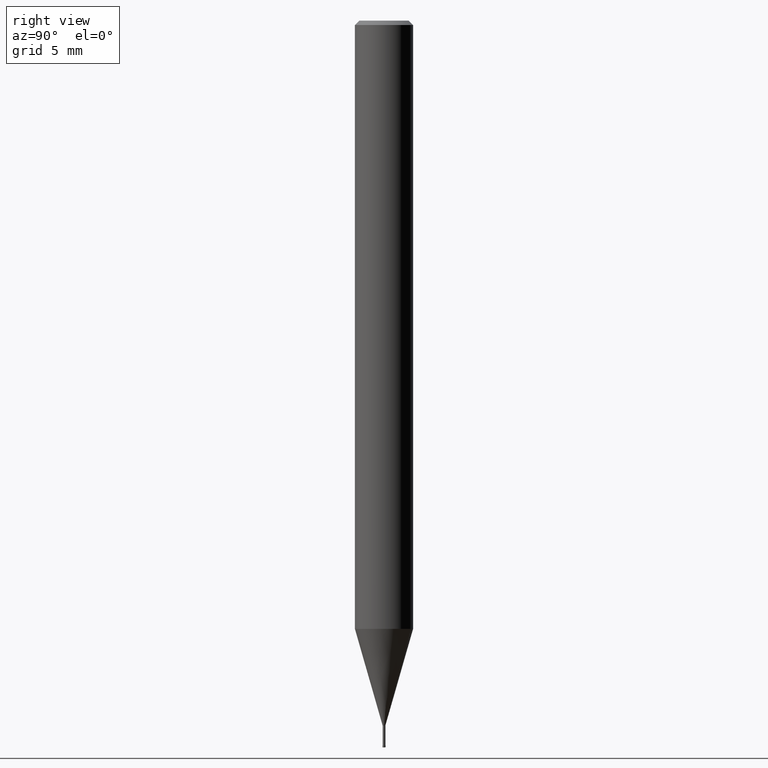
[diagram: clean part render]
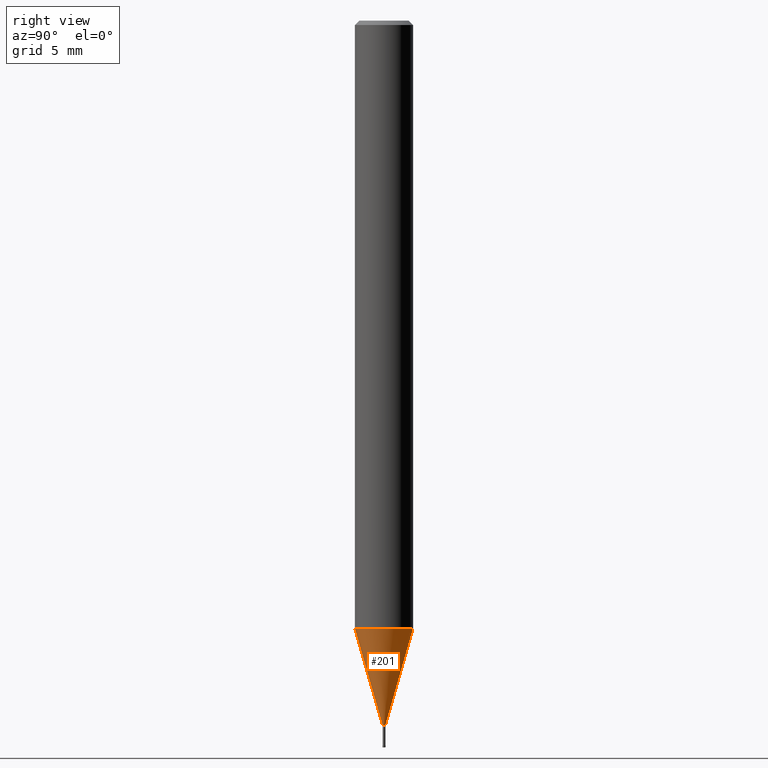
[diagram: same view with one face highlighted and labeled with its STEP entity id]
A machine part, right view. The second image highlights one B-rep face of the part: STEP entity #201.
In plain terms, the highlighted conical surface has half-angle 16.001 deg.
Its self-contained STEP definition (entity closure, byte-faithful):
#167=EDGE_CURVE('',#265,#309,#403,.T.);
#201=ADVANCED_FACE('',(#439),#440,.T.);
#243=EDGE_CURVE('',#253,#265,#491,.T.);
#251=EDGE_CURVE('',#305,#309,#500,.T.);
#253=VERTEX_POINT('',#502);
#265=VERTEX_POINT('',#517);
#305=VERTEX_POINT('',#560);
#309=VERTEX_POINT('',#564);
#337=EDGE_CURVE('',#305,#253,#597,.T.);
#403=LINE('',#670,#671);
#439=FACE_OUTER_BOUND('',#721,.T.);
#440=CONICAL_SURFACE('',#722,1.0462,0.279262361421134);
#491=CIRCLE('',#785,0.09245);
#500=CIRCLE('',#795,1.99995);
#502=CARTESIAN_POINT('',(0.0,0.09245,-48.49));
#517=CARTESIAN_POINT('',(1.13214857410879E-017,-0.09245,-48.49));
#560=CARTESIAN_POINT('',(0.0,1.99995,-41.838));
#564=CARTESIAN_POINT('',(2.44915147732706E-016,-1.99995,-41.838));
#597=LINE('',#919,#920);
#670=CARTESIAN_POINT('',(1.28118316736897E-016,-1.0462,-45.164));
#671=VECTOR('',#965,1.0);
#721=EDGE_LOOP('',(#1010,#1011,#1012,#1013));
#722=AXIS2_PLACEMENT_3D('',#1014,#1015,#1016);
#785=AXIS2_PLACEMENT_3D('',#1097,#1098,#1099);
#795=AXIS2_PLACEMENT_3D('',#1108,#1109,#1110);
#919=CARTESIAN_POINT('',(-1.28118316736897E-016,1.0462,-45.164));
#920=VECTOR('',#1230,1.0);
#965=DIRECTION('',(3.37558653544073E-017,-0.275646661876649,0.961259027419904));
#1010=ORIENTED_EDGE('',*,*,#337,.F.);
#1011=ORIENTED_EDGE('',*,*,#251,.T.);
#1012=ORIENTED_EDGE('',*,*,#167,.F.);
#1013=ORIENTED_EDGE('',*,*,#243,.F.);
#1014=CARTESIAN_POINT('',(0.0,0.0,-45.164));
#1015=DIRECTION('',(-0.0,-0.0,1.0));
#1016=DIRECTION('',(0.0,1.0,0.0));
#1097=CARTESIAN_POINT('',(0.0,0.0,-48.49));
#1098=DIRECTION('',(0.0,0.0,-1.0));
#1099=DIRECTION('',(0.0,1.0,0.0));
#1108=CARTESIAN_POINT('',(0.0,0.0,-41.838));
#1109=DIRECTION('',(0.0,0.0,-1.0));
#1110=DIRECTION('',(0.0,1.0,0.0));
#1230=DIRECTION('',(3.37558653544073E-017,-0.275646661876649,-0.961259027419904));